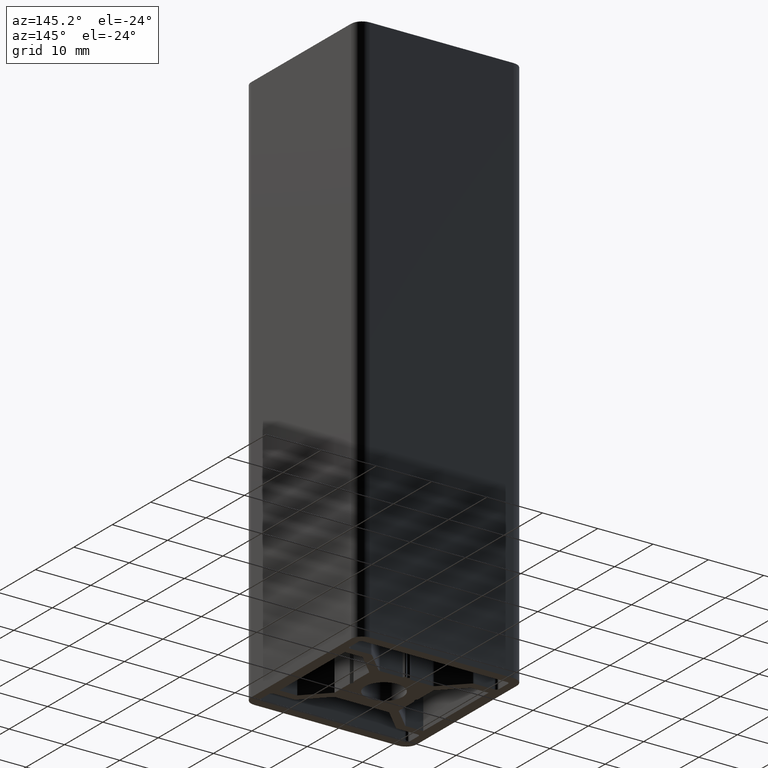
[diagram: clean part render]
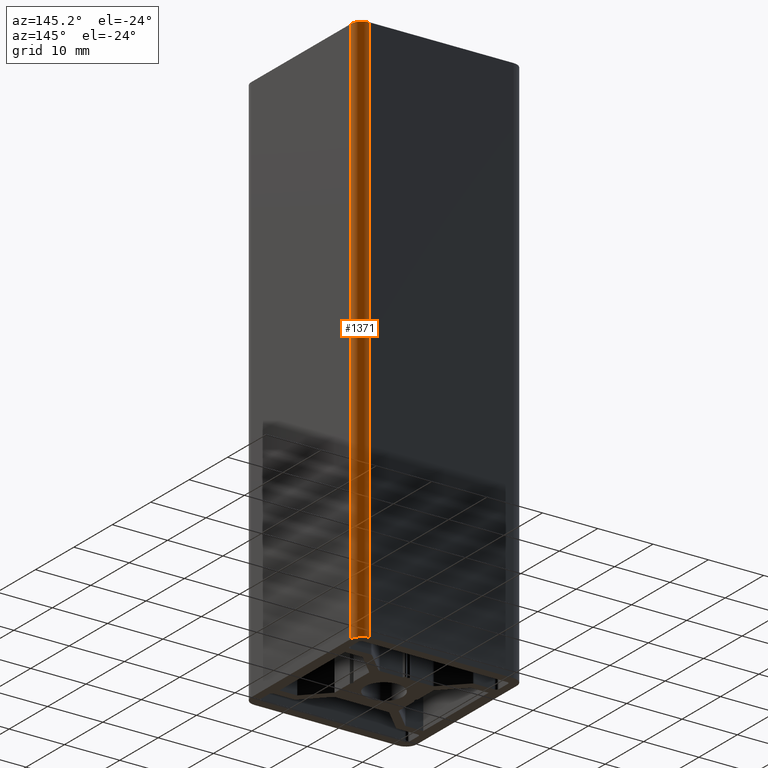
[diagram: same view with one face highlighted and labeled with its STEP entity id]
A machine part, auxiliary view. The second image highlights one B-rep face of the part: STEP entity #1371.
In plain terms, the highlighted cylindrical surface (edge-blend (fillet) strip) has radius 2 mm, axis along (0, 0, 1).
Its self-contained STEP definition (entity closure, byte-faithful):
#64=CIRCLE('',#1480,2.00000000847673);
#65=CIRCLE('',#1481,2.00000000847673);
#91=CYLINDRICAL_SURFACE('',#1479,2.00000000847673);
#154=FACE_OUTER_BOUND('',#223,.T.);
#223=EDGE_LOOP('',(#1107,#1108,#1109,#1110));
#378=LINE('',#2230,#529);
#381=LINE('',#2238,#532);
#529=VECTOR('',#1828,100.);
#532=VECTOR('',#1835,100.);
#661=VERTEX_POINT('',#2227);
#662=VERTEX_POINT('',#2229);
#664=VERTEX_POINT('',#2235);
#665=VERTEX_POINT('',#2237);
#850=EDGE_CURVE('',#662,#661,#378,.T.);
#853=EDGE_CURVE('',#661,#664,#64,.T.);
#854=EDGE_CURVE('',#665,#664,#381,.T.);
#855=EDGE_CURVE('',#662,#665,#65,.T.);
#1107=ORIENTED_EDGE('',*,*,#853,.T.);
#1108=ORIENTED_EDGE('',*,*,#854,.F.);
#1109=ORIENTED_EDGE('',*,*,#855,.F.);
#1110=ORIENTED_EDGE('',*,*,#850,.T.);
#1371=ADVANCED_FACE('',(#154),#91,.T.);
#1479=AXIS2_PLACEMENT_3D('',#2234,#1831,#1832);
#1480=AXIS2_PLACEMENT_3D('',#2236,#1833,#1834);
#1481=AXIS2_PLACEMENT_3D('',#2239,#1836,#1837);
#1828=DIRECTION('',(0.,0.,1.));
#1831=DIRECTION('center_axis',(0.,0.,1.));
#1832=DIRECTION('ref_axis',(-1.,3.84254848573491E-10,0.));
#1833=DIRECTION('center_axis',(0.,0.,-1.));
#1834=DIRECTION('ref_axis',(-1.,3.84254848573491E-10,0.));
#1835=DIRECTION('',(0.,0.,1.));
#1836=DIRECTION('center_axis',(0.,0.,-1.));
#1837=DIRECTION('ref_axis',(-1.,3.84254848573491E-10,0.));
#2227=CARTESIAN_POINT('',(12.9999999917377,14.9999999959286,100.));
#2229=CARTESIAN_POINT('',(12.9999999917377,14.9999999959286,0.));
#2230=CARTESIAN_POINT('',(12.9999999917377,14.9999999959286,0.));
#2234=CARTESIAN_POINT('Origin',(12.9999999909641,12.9999999876662,0.));
#2235=CARTESIAN_POINT('',(14.9999999992264,12.9999999868977,100.));
#2236=CARTESIAN_POINT('Origin',(12.9999999909641,12.9999999876662,100.));
#2237=CARTESIAN_POINT('',(14.9999999992264,12.9999999868977,0.));
#2238=CARTESIAN_POINT('',(14.9999999992264,12.9999999868977,0.));
#2239=CARTESIAN_POINT('Origin',(12.9999999909641,12.9999999876662,0.));